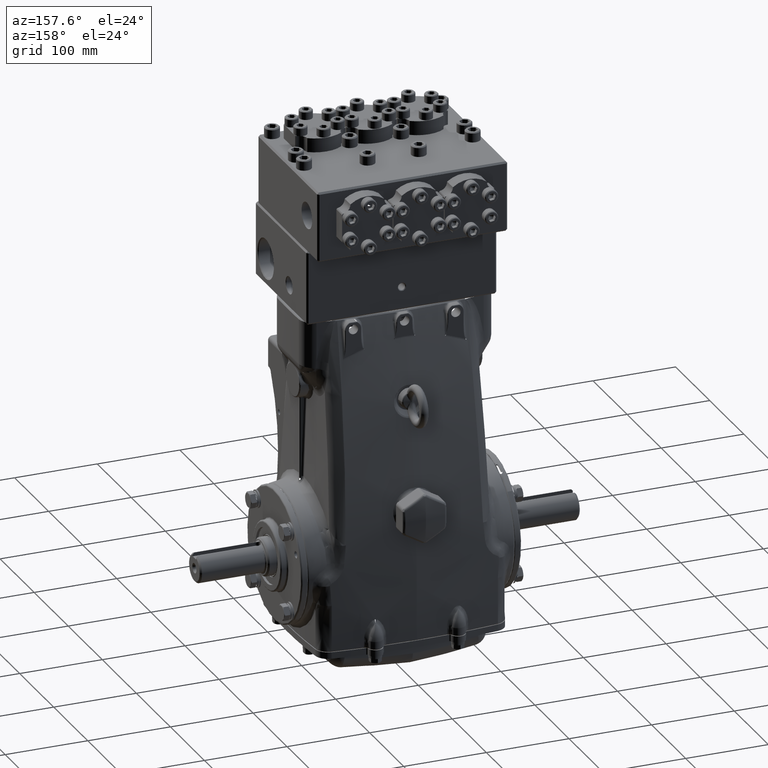
[diagram: clean part render]
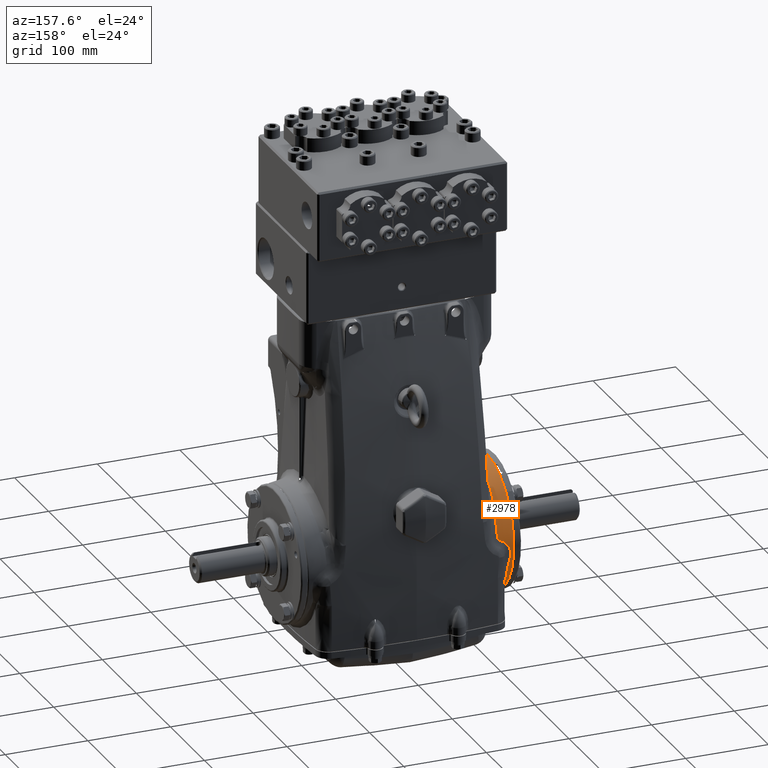
[diagram: same view with one face highlighted and labeled with its STEP entity id]
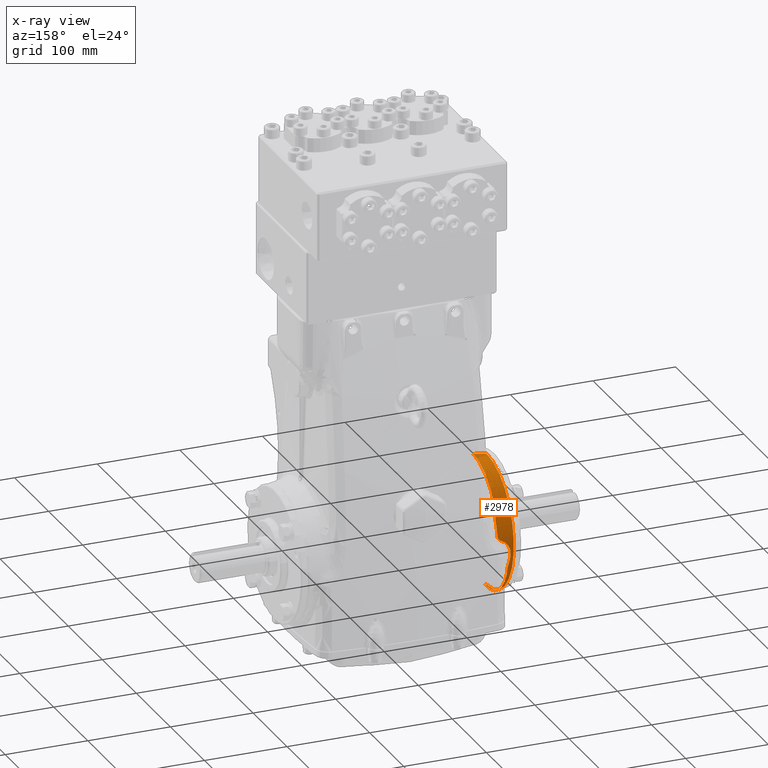
[diagram: x-ray of the same camera — body ghosted, the highlighted face saturated]
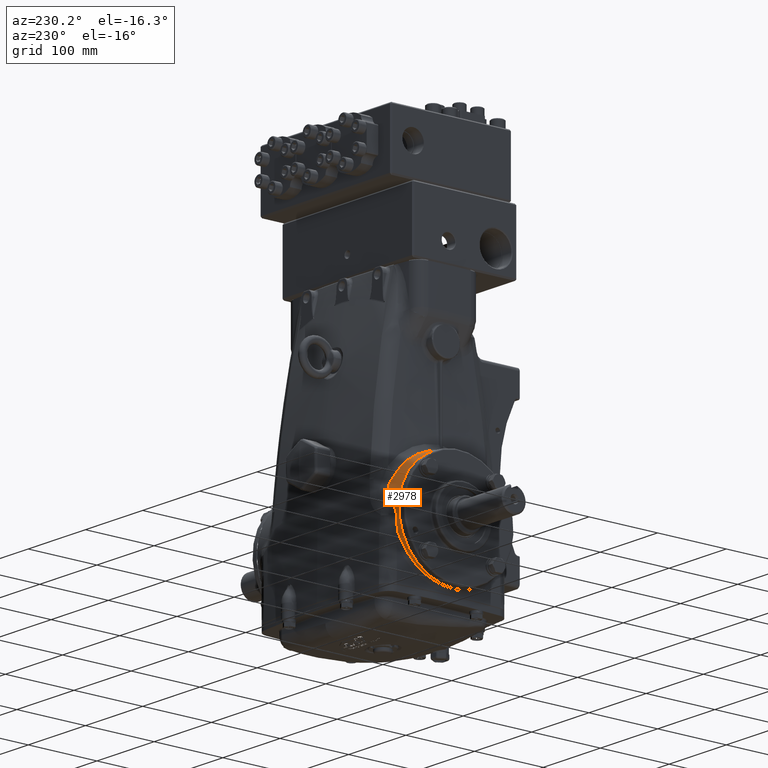
[diagram: same view with one face highlighted and labeled with its STEP entity id]
A machine part, auxiliary view. The second image highlights one B-rep face of the part: STEP entity #2978.
The next image is the same camera in x-ray: the body ghosted, the highlighted face saturated — about 3% of this face is hidden behind the body in this view.
A second angle (auxiliary view) of the same face is appended — the face is thin or edge-on in the first view.
In plain terms, the highlighted toroidal blend (fillet) surface has major radius 710.174 mm and minor (blend) radius 800 mm.
Its self-contained STEP definition (entity closure, byte-faithful):
#178 = CARTESIAN_POINT ( 'NONE',  ( -4.797843095949712477, 0.9092048436318075355, -3.035723445469324933 ) ) ;
#476 = CARTESIAN_POINT ( 'NONE',  ( -4.211605221329781656, 1.459712636566402599, 2.907775198027923391 ) ) ;
#1080 = CARTESIAN_POINT ( 'NONE',  ( -4.189190983256752432, 1.958735077367343314, 2.602774756868502237 ) ) ;
#1690 = CARTESIAN_POINT ( 'NONE',  ( -4.168031201832947730, 2.358709150963936185, 2.250419717699980282 ) ) ;
#1810 = CARTESIAN_POINT ( 'NONE',  ( -4.126408329044968681, 2.796086372542307075, 1.685817952120126639 ) ) ;
#2382 = CARTESIAN_POINT ( 'NONE',  ( -4.637802544244244984, 2.974521444932946235, -1.161151241241906051 ) ) ;
#2556 = CARTESIAN_POINT ( 'NONE',  ( -4.709585980733560717, 3.132484931105113724, -0.5626041391635295819 ) ) ;
#2978 = ADVANCED_FACE ( 'NONE', ( #16856 ), #30606, .T. ) ;
#3164 = CARTESIAN_POINT ( 'NONE',  ( -4.687262923241093837, 3.102456116472033898, -0.7235955573158886489 ) ) ;
#3765 = CARTESIAN_POINT ( 'NONE',  ( -4.662550496418692347, 3.072079581566538931, -0.8575332463922505921 ) ) ;
#3849 = CARTESIAN_POINT ( 'NONE',  ( -4.511779959659552475, 3.206226003355470588, 0.1866642065185905863 ) ) ;
#4372 = CARTESIAN_POINT ( 'NONE',  ( -4.643925203085364828, 3.042650323329321171, -0.9659152903292752557 ) ) ;
#4460 = CARTESIAN_POINT ( 'NONE',  ( -4.707478768105782585, 3.176785799462264137, -0.2060037105546783098 ) ) ;
#4953 = CARTESIAN_POINT ( 'NONE',  ( -4.671994797260747845, 2.817599287592787771, -1.491502570683553408 ) ) ;
#4983 = CARTESIAN_POINT ( 'NONE',  ( -4.633202648746894248, 2.987906131833676149, -1.128746862726888178 ) ) ;
#5137 = VERTEX_POINT ( 'NONE', #104808 ) ;
#6031 = VERTEX_POINT ( 'NONE', #74820 ) ;
#6977 = CARTESIAN_POINT ( 'NONE',  ( -4.060682117725922247, 3.037860683432504594, 1.219760950701152868 ) ) ;
#7551 = CARTESIAN_POINT ( 'NONE',  ( -2.731847993664263218E-15, 0.0000000000000000000, 0.0000000000000000000 ) ) ;
#7580 = CARTESIAN_POINT ( 'NONE',  ( -4.068284557955822223, 3.102059307751843686, 1.042674253447394062 ) ) ;
#7633 = CARTESIAN_POINT ( 'NONE',  ( -4.683430408163863135, 2.701634298173186455, -1.690395597115273985 ) ) ;
#7797 = CARTESIAN_POINT ( 'NONE',  ( -4.108279912502661446, 3.227877772341144258, 0.5064635244392037272 ) ) ;
#8244 = CARTESIAN_POINT ( 'NONE',  ( -4.717589957522975830, 2.316087719481910057, -2.180689669581934442 ) ) ;
#8859 = CARTESIAN_POINT ( 'NONE',  ( -4.763233705948388241, 1.668563542145169887, -2.700266167151289753 ) ) ;
#9013 = CARTESIAN_POINT ( 'NONE',  ( -4.671994797260747845, 2.817599287592787771, -1.491502570683553408 ) ) ;
#9464 = CARTESIAN_POINT ( 'NONE',  ( -4.794312616797400395, 1.013066599493596787, -3.003349883579779167 ) ) ;
#9771 = CARTESIAN_POINT ( 'NONE',  ( -4.220826247673924669, 1.208398392037944191, 3.022436128811769152 ) ) ;
#10088 = CARTESIAN_POINT ( 'NONE',  ( -4.812441865951741171, 0.1405687677117224144, -3.166625632652416922 ) ) ;
#10380 = CARTESIAN_POINT ( 'NONE',  ( -4.202618106653496000, 1.673424365633090716, 2.792380330007606659 ) ) ;
#10991 = CARTESIAN_POINT ( 'NONE',  ( -4.176290951663232498, 2.206861225430909457, 2.397505253174283535 ) ) ;
#11112 = CARTESIAN_POINT ( 'NONE',  ( -4.127112141118856492, 2.793115142972120601, 1.690558321221252935 ) ) ;
#11866 = CARTESIAN_POINT ( 'NONE',  ( -4.718949966771314841, 3.163181307671568465, -0.3420644485147501523 ) ) ;
#12473 = CARTESIAN_POINT ( 'NONE',  ( -4.687354046186608336, 3.102565975567542989, -0.7230639823669762212 ) ) ;
#12553 = CARTESIAN_POINT ( 'NONE',  ( -4.241298004304445257, 3.226000655407923912, 0.3907540742130110600 ) ) ;
#13067 = CARTESIAN_POINT ( 'NONE',  ( -4.667220439164643686, 3.078077342255525206, -0.8327364127504113256 ) ) ;
#13150 = CARTESIAN_POINT ( 'NONE',  ( -4.417987023484300835, 3.213153585340496221, 0.2768641273386435731 ) ) ;
#13679 = CARTESIAN_POINT ( 'NONE',  ( -4.647373880086534292, 3.048817741666649539, -0.9442737949156236876 ) ) ;
#13767 = CARTESIAN_POINT ( 'NONE',  ( -4.654287345790805830, 3.190485518470921100, -0.03772327638319619009 ) ) ;
#14257 = CARTESIAN_POINT ( 'NONE',  ( -4.637802544244244984, 2.974521444932946235, -1.161151241241906051 ) ) ;
#14285 = CARTESIAN_POINT ( 'NONE',  ( -4.634450989300444412, 3.014869449613513552, -1.053469424443866043 ) ) ;
#16278 = CARTESIAN_POINT ( 'NONE',  ( -4.060613805208734384, 3.035199367547008364, 1.226395766757159667 ) ) ;
#16815 = EDGE_CURVE ( 'NONE', #59379, #60044, #50010, .T. ) ;
#16856 = FACE_OUTER_BOUND ( 'NONE', #101670, .T. ) ;
#16882 = CARTESIAN_POINT ( 'NONE',  ( -4.067102877344662915, 3.094560274856232418, 1.065209821238402910 ) ) ;
#16933 = CARTESIAN_POINT ( 'NONE',  ( -4.671994797260747845, 2.817599287592787771, -1.491502570683553408 ) ) ;
#17102 = CARTESIAN_POINT ( 'NONE',  ( -4.093165184920723121, 3.225625657109164823, 0.5329661748473996097 ) ) ;
#17538 = CARTESIAN_POINT ( 'NONE',  ( -4.716619429066391866, 2.327906455178991862, -2.168297233718784689 ) ) ;
#17644 = B_SPLINE_CURVE_WITH_KNOTS ( 'NONE', 3,
 ( #14257, #52049, #89875, #4953 ),
 .UNSPECIFIED., .F., .F.,
 ( 4, 4 ),
 ( 0.0000000000000000000, 1.000000000000000000 ),
 .UNSPECIFIED. ) ;
#17669 = VERTEX_POINT ( 'NONE', #116915 ) ;
#18144 = CARTESIAN_POINT ( 'NONE',  ( -4.759732723984808622, 1.726496530009379082, -2.664350123377031032 ) ) ;
#18760 = CARTESIAN_POINT ( 'NONE',  ( -4.779332873788414204, 1.374437189907673273, -2.862059335705383845 ) ) ;
#19055 = CARTESIAN_POINT ( 'NONE',  ( -4.236104258452003890, 0.5879713359873277589, 3.199139847572507911 ) ) ;
#19374 = CARTESIAN_POINT ( 'NONE',  ( -4.803852467295594231, 0.7116834956764080955, -3.090504072778696987 ) ) ;
#19677 = CARTESIAN_POINT ( 'NONE',  ( -4.208540778272051419, 1.535507018643274435, 2.869031103639957170 ) ) ;
#19686 = CARTESIAN_POINT ( 'NONE',  ( 1.050220729719372817E-16, 0.0000000000000000000, 27.95960753795100473 ) ) ;
#19997 = ORIENTED_EDGE ( 'NONE', *, *, #23401, .T. ) ;
#20288 = CARTESIAN_POINT ( 'NONE',  ( -4.181113014844834552, 2.115889190610132253, 2.477053726652969079 ) ) ;
#20409 = CARTESIAN_POINT ( 'NONE',  ( -4.132586612445548369, 2.768810050746975282, 1.728819305921614591 ) ) ;
#21718 = DIRECTION ( 'NONE',  ( 1.000000000000000000, -0.0000000000000000000, -1.014631576207051350E-16 ) ) ;
#21764 = CARTESIAN_POINT ( 'NONE',  ( -4.688032192481906613, 3.103385253011131439, -0.7190895948247202352 ) ) ;
#21912 = VERTEX_POINT ( 'NONE', #76338 ) ;
#22372 = CARTESIAN_POINT ( 'NONE',  ( -4.669114370948201476, 3.080493680371853671, -0.8226656118114643590 ) ) ;
#22456 = CARTESIAN_POINT ( 'NONE',  ( -4.397186821826109870, 3.214622024187163696, 0.2936614195985500220 ) ) ;
#22967 = CARTESIAN_POINT ( 'NONE',  ( -4.647790478721005591, 3.049556969106494542, -0.9416738267458258926 ) ) ;
#23054 = CARTESIAN_POINT ( 'NONE',  ( -4.606960692279701064, 3.197344500046657156, 0.05734295969434103496 ) ) ;
#23186 = B_SPLINE_CURVE_WITH_KNOTS ( 'NONE', 3,
 ( #16933, #54723, #92530, #7633, #45429, #83250, #120913, #36109, #73952, #111661, #26821, #64656, #102408, #17538, #55338, #93136, #8244, #46039, #83864, #121538, #36733, #74566, #112272, #27439, #65273, #103016, #18144, #55939, #93744, #8859, #46648, #84480, #122149, #37341, #75186, #112885, #28057, #65885, #103627, #18760, #56559, #94358, #9464, #47269, #85100, #178, #37956, #75808, #113495, #28676, #66497, #104241, #19374, #57185, #94974, #10088, #47883 ),
 .UNSPECIFIED., .F., .F.,
 ( 4, 2, 2, 2, 2, 2, 1, 1, 1, 1, 2, 2, 2, 2, 2, 2, 2, 1, 1, 1, 1, 1, 2, 2, 2, 2, 2, 1, 1, 1, 1, 2, 2, 2, 4 ),
 ( 0.0000000000000000000, 0.03125311318571629554, 0.06250622637143259108, 0.09375933955714889356, 0.1093858961500070032, 0.1171991744464360719, 0.1211058135946505854, 0.1230591331687579115, 0.1240357929558115885, 0.1245241228493384478, 0.1247682877961018427, 0.1250124527428652099, 0.1562655659285787368, 0.1875186791142922638, 0.2187717923000057907, 0.2343983488928624570, 0.2422116271892908734, 0.2461182663375050816, 0.2480715859116121580, 0.2490482456986656545, 0.2495365755921922779, 0.2497807405389556035, 0.2499028230123371275, 0.2500249054857186515, 0.3125311318570550556, 0.3437842450427233132, 0.3594108016355573865, 0.3672240799319744786, 0.3711307190801830802, 0.3730840386542873532, 0.3740606984413394898, 0.3745490283348654748, 0.3750373582283915153, 0.4375435845997214801, 0.5000498109710513894 ),
 .UNSPECIFIED. ) ;
#23401 = EDGE_CURVE ( 'NONE', #65008, #29356, #95873, .T. ) ;
#23582 = CARTESIAN_POINT ( 'NONE',  ( -4.634630652145853347, 3.015844245340256968, -1.050595136712090261 ) ) ;
#24238 = AXIS2_PLACEMENT_3D ( 'NONE', #106560, #21718, #59512 ) ;
#24873 = AXIS2_PLACEMENT_3D ( 'NONE', #33738, #71564, #109279 ) ;
#25547 = CARTESIAN_POINT ( 'NONE',  ( -4.060790985719259005, 3.020988201423264741, 1.260962887461640092 ) ) ;
#26153 = CARTESIAN_POINT ( 'NONE',  ( -4.064397822582684228, 3.075925910933099416, 1.119075613789618506 ) ) ;
#26371 = CARTESIAN_POINT ( 'NONE',  ( -4.068304483177183073, 3.216034579250465431, 0.6064597124523278815 ) ) ;
#26766 = CARTESIAN_POINT ( 'NONE',  ( -4.074363985436248115, 3.180820828266668787, 0.7689710390521488081 ) ) ;
#26821 = CARTESIAN_POINT ( 'NONE',  ( -4.712659892498009206, 2.375626968222384949, -2.116911112170181131 ) ) ;
#27439 = CARTESIAN_POINT ( 'NONE',  ( -4.750254788205690026, 1.874554800852576975, -2.565005768069354541 ) ) ;
#28057 = CARTESIAN_POINT ( 'NONE',  ( -4.764642457934063380, 1.644579829930432613, -2.714681449450699890 ) ) ;
#28354 = CARTESIAN_POINT ( 'NONE',  ( -4.240228305173727286, 0.2297979854777702502, 3.242110647552720160 ) ) ;
#28676 = CARTESIAN_POINT ( 'NONE',  ( -4.799437959627123718, 0.8579527036116665339, -3.050271356682671353 ) ) ;
#28962 = CARTESIAN_POINT ( 'NONE',  ( -4.211025483433735062, 1.474377967702478642, 2.900462298901600899 ) ) ;
#29356 = VERTEX_POINT ( 'NONE', #72425 ) ;
#29564 = CARTESIAN_POINT ( 'NONE',  ( -4.182322626664320531, 2.092803026198815530, 2.496343212924442501 ) ) ;
#29681 = CARTESIAN_POINT ( 'NONE',  ( -4.142279940224504742, 2.717042258368078667, 1.806882848541122577 ) ) ;
#30297 = CARTESIAN_POINT ( 'NONE',  ( -4.073807283106575028, 2.959955667553678893, 1.394234154907067369 ) ) ;
#30606 = TOROIDAL_SURFACE ( 'NONE', #46440, -27.95960753795100473, 31.49606299212598515 ) ;
#31044 = CARTESIAN_POINT ( 'NONE',  ( -4.693224141703741914, 3.109767864790992764, -0.6874893449112643440 ) ) ;
#31661 = CARTESIAN_POINT ( 'NONE',  ( -4.676137898167103124, 3.089221795566293505, -0.7850670337349557881 ) ) ;
#31746 = CARTESIAN_POINT ( 'NONE',  ( -4.350307036733443766, 3.217929832169827087, 0.3278665764670546379 ) ) ;
#32269 = CARTESIAN_POINT ( 'NONE',  ( -4.650305141355814520, 3.053837608234353684, -0.9264143642954951741 ) ) ;
#32349 = CARTESIAN_POINT ( 'NONE',  ( -4.556716753946008502, 3.202404114247054512, 0.1313652778082986528 ) ) ;
#32869 = CARTESIAN_POINT ( 'NONE',  ( -4.635873131140050951, 3.021321905678378883, -1.034174722359415322 ) ) ;
#33692 = EDGE_CURVE ( 'NONE', #6031, #5137, #94188, .T. ) ;
#33738 = CARTESIAN_POINT ( 'NONE',  ( -5.568718060300463558E-15, -3.424064387676790698E-15, -27.95960753795100473 ) ) ;
#34843 = CARTESIAN_POINT ( 'NONE',  ( -4.065483745677839877, 2.984415806383051262, 1.344103163167974291 ) ) ;
#35307 = EDGE_CURVE ( 'NONE', #85900, #100896, #108739, .T. ) ;
#35445 = CARTESIAN_POINT ( 'NONE',  ( -4.060888845328348928, 3.044272128059818172, 1.203706702774061776 ) ) ;
#36056 = CARTESIAN_POINT ( 'NONE',  ( -4.068532156453218640, 3.103588364022296986, 1.038010575859050766 ) ) ;
#36109 = CARTESIAN_POINT ( 'NONE',  ( -4.705443912580073551, 2.460462718559939255, -2.019691177571926399 ) ) ;
#36282 = CARTESIAN_POINT ( 'NONE',  ( -4.143015188862572806, 3.231316291240728500, 0.4545007877094318083 ) ) ;
#36733 = CARTESIAN_POINT ( 'NONE',  ( -4.728569116195684430, 2.178324289510480849, -2.317597206545339183 ) ) ;
#37341 = CARTESIAN_POINT ( 'NONE',  ( -4.764539169395844986, 1.646354510089773182, -2.713624174705099090 ) ) ;
#37478 = ORIENTED_EDGE ( 'NONE', *, *, #39262, .T. ) ;
#37638 = CARTESIAN_POINT ( 'NONE',  ( -4.240953334966198973, 0.05668292496124047869, 3.249258510206218808 ) ) ;
#37956 = CARTESIAN_POINT ( 'NONE',  ( -4.798713747854339573, 0.8815580754054231916, -3.043668421738258356 ) ) ;
#38245 = CARTESIAN_POINT ( 'NONE',  ( -4.211561456518189139, 1.460825144298188771, 2.907223057753597573 ) ) ;
#38856 = CARTESIAN_POINT ( 'NONE',  ( -4.185988274675155552, 2.022647832414890434, 2.554336630853033974 ) ) ;
#38978 = CARTESIAN_POINT ( 'NONE',  ( -4.154194953984836403, 2.605897780206630987, 1.960951467905414525 ) ) ;
#39262 = EDGE_CURVE ( 'NONE', #100896, #46222, #17644, .T. ) ;
#39471 = CARTESIAN_POINT ( 'NONE',  ( -4.160948370523017914, 2.485929650389656409, 2.113262575487194539 ) ) ;
#39585 = CARTESIAN_POINT ( 'NONE',  ( -4.126339195425622108, 2.796376527518634525, 1.685354288209334639 ) ) ;
#40337 = CARTESIAN_POINT ( 'NONE',  ( -4.702604789657244488, 3.122155978892150685, -0.6218021552101953286 ) ) ;
#40944 = CARTESIAN_POINT ( 'NONE',  ( -4.685647947006665426, 3.100509618030842685, -0.7330108302683622234 ) ) ;
#41557 = CARTESIAN_POINT ( 'NONE',  ( -4.658744023977678950, 3.066781797780099961, -0.8782455666333535138 ) ) ;
#41639 = CARTESIAN_POINT ( 'NONE',  ( -4.523483147003783955, 3.205284496424921414, 0.1732206657350554291 ) ) ;
#42171 = CARTESIAN_POINT ( 'NONE',  ( -4.641161413697816762, 3.036739050912720117, -0.9856143735910870562 ) ) ;
#42247 = CARTESIAN_POINT ( 'NONE',  ( -4.713410149019337858, 3.169753052427448203, -0.2763368758280543847 ) ) ;
#42764 = CARTESIAN_POINT ( 'NONE',  ( -4.637802544244244984, 2.974521444932946235, -1.161151241241906051 ) ) ;
#44758 = CARTESIAN_POINT ( 'NONE',  ( -4.060687204822597707, 3.038023808686082017, 1.219352774106949422 ) ) ;
#45345 = DIRECTION ( 'NONE',  ( 1.000000000000000000, -0.0000000000000000000, -1.014631576207059362E-16 ) ) ;
#45380 = CARTESIAN_POINT ( 'NONE',  ( -4.068415643070390608, 3.102870316987392130, 1.040203202745187294 ) ) ;
#45429 = CARTESIAN_POINT ( 'NONE',  ( -4.686896633908743226, 2.665530621674756961, -1.746205885232524402 ) ) ;
#45593 = CARTESIAN_POINT ( 'NONE',  ( -4.109824750242523805, 3.228043533660647224, 0.5040861840430629348 ) ) ;
#46039 = CARTESIAN_POINT ( 'NONE',  ( -4.717671136564600687, 2.315097310291981625, -2.181723162825993878 ) ) ;
#46222 = VERTEX_POINT ( 'NONE', #9013 ) ;
#46440 = AXIS2_PLACEMENT_3D ( 'NONE', #7551, #45345, #83173 ) ;
#46648 = CARTESIAN_POINT ( 'NONE',  ( -4.763675530139307668, 1.661102790233410564, -2.704786806589696724 ) ) ;
#47269 = CARTESIAN_POINT ( 'NONE',  ( -4.795450030175883782, 0.9809122713442132158, -3.013811345509747497 ) ) ;
#47560 = CARTESIAN_POINT ( 'NONE',  ( -4.216548039107368417, 1.333862886328504249, 2.970133266067845668 ) ) ;
#47883 = CARTESIAN_POINT ( 'NONE',  ( -4.812441923013380141, -1.483643769782659426E-06, -3.166625558008624886 ) ) ;
#48172 = CARTESIAN_POINT ( 'NONE',  ( -4.197764519733664379, 1.780128488656253616, 2.726376967030726739 ) ) ;
#48776 = CARTESIAN_POINT ( 'NONE',  ( -4.174830265929363016, 2.234039248338217210, 2.372433046703318560 ) ) ;
#48893 = CARTESIAN_POINT ( 'NONE',  ( -4.126702464456719177, 2.794848501333184299, 1.687794566716130706 ) ) ;
#49654 = CARTESIAN_POINT ( 'NONE',  ( -4.719540509578000531, 3.154915213107856164, -0.4122929287186804514 ) ) ;
#50010 = CIRCLE ( 'NONE', #119137, 31.49606299212598515 ) ;
#50261 = CARTESIAN_POINT ( 'NONE',  ( -4.687312314538300662, 3.102515657681125028, -0.7233074892485588103 ) ) ;
#50867 = CARTESIAN_POINT ( 'NONE',  ( -4.667059506843767913, 3.077870945339407083, -0.8335911977568878362 ) ) ;
#50945 = CARTESIAN_POINT ( 'NONE',  ( -4.449289446077417054, 3.210934168277634448, 0.2506529986586616965 ) ) ;
#51465 = CARTESIAN_POINT ( 'NONE',  ( -4.647339634157449773, 3.048756602665818161, -0.9444884395169841351 ) ) ;
#51547 = CARTESIAN_POINT ( 'NONE',  ( -4.660993397047885622, 3.189250702800486170, -0.05404280267340488830 ) ) ;
#52049 = CARTESIAN_POINT ( 'NONE',  ( -4.655392872214228817, 2.923354228967182333, -1.285024907199356692 ) ) ;
#52078 = CARTESIAN_POINT ( 'NONE',  ( -4.634440606442751687, 3.014811411861998192, -1.053640205914663008 ) ) ;
#54071 = CARTESIAN_POINT ( 'NONE',  ( -4.060649463394509162, 3.036719413738879769, 1.222611771821872528 ) ) ;
#54673 = CARTESIAN_POINT ( 'NONE',  ( -4.067518039496773596, 3.097246644296904883, 1.057219212113420514 ) ) ;
#54723 = CARTESIAN_POINT ( 'NONE',  ( -4.674419873925382163, 2.793311763126516301, -1.536606663971731734 ) ) ;
#54889 = CARTESIAN_POINT ( 'NONE',  ( -4.098158099471019611, 3.226559838525895785, 0.5232349947814430857 ) ) ;
#55338 = CARTESIAN_POINT ( 'NONE',  ( -4.717184718578559810, 2.321027756816163024, -2.175523902555401623 ) ) ;
#55939 = CARTESIAN_POINT ( 'NONE',  ( -4.761700742719797042, 1.694181793152122362, -2.684567901175132221 ) ) ;
#56559 = CARTESIAN_POINT ( 'NONE',  ( -4.788055986661514218, 1.175783542990256114, -2.945171316113561755 ) ) ;
#56854 = CARTESIAN_POINT ( 'NONE',  ( -4.231215602252240693, 0.8338266816018564676, 3.144717854230572485 ) ) ;
#57185 = CARTESIAN_POINT ( 'NONE',  ( -4.807073488771952618, 0.5684139183233889447, -3.119363334558183265 ) ) ;
#57476 = CARTESIAN_POINT ( 'NONE',  ( -4.207650640939227138, 1.556802062359595507, 2.857693013763739742 ) ) ;
#57487 = DIRECTION ( 'NONE',  ( -0.0000000000000000000, -1.000000000000000000, 0.0000000000000000000 ) ) ;
#57957 = CARTESIAN_POINT ( 'NONE',  ( -4.874534027504089373, 0.0000000000000000000, -3.156962035488048102 ) ) ;
#58089 = CARTESIAN_POINT ( 'NONE',  ( -4.179724592494904911, 2.142270490814027539, 2.454623124114609922 ) ) ;
#58208 = CARTESIAN_POINT ( 'NONE',  ( -4.129518000186591209, 2.782706995776219383, 1.707054378561656538 ) ) ;
#59379 = VERTEX_POINT ( 'NONE', #57957 ) ;
#59512 = DIRECTION ( 'NONE',  ( -1.730681562182256507E-16, 0.0000000000000000000, -1.000000000000000000 ) ) ;
#59565 = CARTESIAN_POINT ( 'NONE',  ( -4.687645473598392343, 3.102917684149256949, -0.7213600123980212775 ) ) ;
#60044 = VERTEX_POINT ( 'NONE', #84348 ) ;
#60177 = CARTESIAN_POINT ( 'NONE',  ( -4.668018346718151079, 3.079098323096850720, -0.8284963074493799651 ) ) ;
#60260 = CARTESIAN_POINT ( 'NONE',  ( -4.407652848613972552, 3.213883866361708197, 0.2852961244722243550 ) ) ;
#60787 = CARTESIAN_POINT ( 'NONE',  ( -4.647546133545997549, 3.049124446143233413, -0.9431961791801340977 ) ) ;
#60870 = CARTESIAN_POINT ( 'NONE',  ( -4.631961125586597561, 3.194016852631057723, 0.01042872530092255057 ) ) ;
#61397 = CARTESIAN_POINT ( 'NONE',  ( -4.634524355979860566, 3.015274912597994295, -1.052275391091169743 ) ) ;
#63397 = CARTESIAN_POINT ( 'NONE',  ( -4.060588998366524649, 3.026121350726084014, 1.248690024777530994 ) ) ;
#63992 = CARTESIAN_POINT ( 'NONE',  ( -4.065797341743982329, 3.085842093108770889, 1.090750359027990557 ) ) ;
#64209 = CARTESIAN_POINT ( 'NONE',  ( -4.079234441981559378, 3.221883865133627456, 0.5659006136565180034 ) ) ;
#64609 = CARTESIAN_POINT ( 'NONE',  ( -4.072290178920226822, 3.193926241206049621, 0.7127005550974006010 ) ) ;
#64656 = CARTESIAN_POINT ( 'NONE',  ( -4.714545186524246034, 2.352995141165256321, -2.141527795417557112 ) ) ;
#65008 = VERTEX_POINT ( 'NONE', #100044 ) ;
#65273 = CARTESIAN_POINT ( 'NONE',  ( -4.753735279874944375, 1.821527652537699105, -2.601940138432784710 ) ) ;
#65885 = CARTESIAN_POINT ( 'NONE',  ( -4.764648427671553499, 1.644477202537559801, -2.714742563164085798 ) ) ;
#66177 = CARTESIAN_POINT ( 'NONE',  ( -4.239770164835555022, 0.2885403666436016090, 3.237503364516749915 ) ) ;
#66497 = CARTESIAN_POINT ( 'NONE',  ( -4.799497430015688515, 0.8559893023175728644, -3.050813399196085296 ) ) ;
#66787 = CARTESIAN_POINT ( 'NONE',  ( -4.210373887476568378, 1.490681231529583206, 2.892241823473294282 ) ) ;
#67391 = CARTESIAN_POINT ( 'NONE',  ( -4.182170419690125485, 2.095713311677581459, 2.493929034235552678 ) ) ;
#67511 = CARTESIAN_POINT ( 'NONE',  ( -4.139591045012609882, 2.732989114669878816, 1.783338659707518037 ) ) ;
#68281 = CARTESIAN_POINT ( 'NONE',  ( -4.713410149019337858, 3.169753052427448203, -0.2763368758280543847 ) ) ;
#68891 = CARTESIAN_POINT ( 'NONE',  ( -4.690308082278538571, 3.106157817435942103, -0.7055041571669017353 ) ) ;
#69502 = CARTESIAN_POINT ( 'NONE',  ( -4.672923879902360689, 3.085266884929058318, -0.8023217581850503599 ) ) ;
#69582 = CARTESIAN_POINT ( 'NONE',  ( -4.364994736599185465, 3.216890663559647923, 0.3176943694298491883 ) ) ;
#70103 = CARTESIAN_POINT ( 'NONE',  ( -4.649334226890559307, 3.052227528950085311, -0.9322061596610313750 ) ) ;
#70188 = CARTESIAN_POINT ( 'NONE',  ( -4.561969227766507373, 3.201919147311642178, 0.1242613619186474228 ) ) ;
#70704 = CARTESIAN_POINT ( 'NONE',  ( -4.635356945479838231, 3.019301196228806994, -1.040300789310913743 ) ) ;
#71564 = DIRECTION ( 'NONE',  ( -1.242565312115808949E-32, 1.000000000000000000, -1.224646799147353207E-16 ) ) ;
#71626 = EDGE_CURVE ( 'NONE', #29356, #6031, #75578, .T. ) ;
#72107 = B_SPLINE_CURVE_WITH_KNOTS ( 'NONE', 3,
 ( #84774, #122443, #37638, #75486, #113170, #28354, #66177, #103924, #19055, #56854, #94658, #9771, #47560, #85391, #476, #38245, #76093, #113782, #28962, #66787, #104525, #19677, #57476, #95265, #10380, #48172, #86000, #1080, #38856, #76695, #114390, #29564, #67391, #105133, #20288, #58089, #95880, #10991, #48776, #86615, #1690, #39471, #77307, #114989 ),
 .UNSPECIFIED., .F., .F.,
 ( 4, 2, 2, 2, 2, 2, 2, 2, 1, 1, 1, 1, 2, 2, 2, 2, 2, 2, 1, 1, 1, 1, 2, 2, 2, 4 ),
 ( 0.4998095448471048807, 0.5154404965706326225, 0.5310714482941604198, 0.5623333517412159033, 0.6248571586353269813, 0.6873809655294379484, 0.7499047724235490264, 0.7503932396649092285, 0.7508817069062694305, 0.7518586413889898346, 0.7538125103544307537, 0.7577202482853128140, 0.7655357241470769347, 0.7811666758706050651, 0.8124285793176613257, 0.8436904827647176974, 0.8749523862117739581, 0.8754408534531341601, 0.8759293206944944732, 0.8769062551772148772, 0.8788601241426559074, 0.8827678620735379678, 0.8905833379353020884, 0.9062142896588303298, 0.9374761931058868125, 1.000000000000000000 ),
 .UNSPECIFIED. ) ;
#72425 = CARTESIAN_POINT ( 'NONE',  ( -4.073807283106575028, 2.959955667553678893, 1.394234154907067369 ) ) ;
#72674 = CARTESIAN_POINT ( 'NONE',  ( -4.062205402962512757, 3.004103549892345182, 1.300282933183972034 ) ) ;
#73283 = CARTESIAN_POINT ( 'NONE',  ( -4.061640678879331112, 3.053099380401181229, 1.181191259637637270 ) ) ;
#73496 = CARTESIAN_POINT ( 'NONE',  ( -4.068200303526625206, 3.204746600826735126, 0.6630299790286307005 ) ) ;
#73902 = CARTESIAN_POINT ( 'NONE',  ( -4.072521757522702401, 3.128117435498546595, 0.9630082769759731320 ) ) ;
#73952 = CARTESIAN_POINT ( 'NONE',  ( -4.707784198545636123, 2.433308943304985927, -2.051827892108244900 ) ) ;
#74119 = CARTESIAN_POINT ( 'NONE',  ( -4.186148826015539726, 3.230282863534385207, 0.4177282841758522824 ) ) ;
#74566 = CARTESIAN_POINT ( 'NONE',  ( -4.738100092814431008, 2.049982218613623619, -2.429962069731101515 ) ) ;
#74820 = CARTESIAN_POINT ( 'NONE',  ( -4.068200303526625206, 3.204746600826735126, 0.6630299790286307005 ) ) ;
#75186 = CARTESIAN_POINT ( 'NONE',  ( -4.764599485835518067, 1.645318456092273340, -2.714241568333171983 ) ) ;
#75248 = EDGE_CURVE ( 'NONE', #21912, #17669, #78355, .T. ) ;
#75486 = CARTESIAN_POINT ( 'NONE',  ( -4.240800790362834860, 0.1139501121042472698, 3.247775225091308116 ) ) ;
#75578 = B_SPLINE_CURVE_WITH_KNOTS ( 'NONE', 3,
 ( #81987, #119636, #34843, #72674, #110374, #25547, #63397, #101151, #16278, #54071, #91873, #6977, #44758, #82596, #120250, #35445, #73283, #110980, #26153, #63992, #101751, #16882, #54673, #92478, #7580, #45380, #83202, #120864, #36056, #73902, #111606, #26766, #64609, #102360 ),
 .UNSPECIFIED., .F., .F.,
 ( 4, 2, 2, 1, 1, 1, 1, 1, 1, 2, 2, 2, 2, 2, 1, 1, 1, 1, 2, 2, 2, 4 ),
 ( 0.0000000000000000000, 0.1249999999999765188, 0.1874999999999648337, 0.2187499999999585887, 0.2343749999999550915, 0.2421874999999529821, 0.2460937499999513722, 0.2480468749999507894, 0.2490234374999505118, 0.2495117187499497902, 0.2499999999999490963, 0.3749999999999541478, 0.4374999999999566458, 0.4687499999999580336, 0.4843749999999586442, 0.4921874999999587552, 0.4960937499999590883, 0.4980468749999593103, 0.4990234374999591438, 0.4999999999999590328, 0.7499999999999795719, 1.000000000000000000 ),
 .UNSPECIFIED. ) ;
#75808 = CARTESIAN_POINT ( 'NONE',  ( -4.799138692012363094, 0.8677778144568014662, -3.047543337469392100 ) ) ;
#76093 = CARTESIAN_POINT ( 'NONE',  ( -4.211495619909074506, 1.462497469025329622, 2.906392489463466511 ) ) ;
#76338 = CARTESIAN_POINT ( 'NONE',  ( -4.874534027504088485, 3.866163451790151959E-16, 3.156962035488049434 ) ) ;
#76695 = CARTESIAN_POINT ( 'NONE',  ( -4.182472802713530058, 2.089930500686815407, 2.498722388161982444 ) ) ;
#76814 = CARTESIAN_POINT ( 'NONE',  ( -4.152452471206441231, 2.637416720390434843, 1.919451715463281527 ) ) ;
#77307 = CARTESIAN_POINT ( 'NONE',  ( -4.157123225151093671, 2.552917901241401832, 2.030708140883787483 ) ) ;
#77427 = CARTESIAN_POINT ( 'NONE',  ( -4.113773588151441452, 2.849044325931712418, 1.601160860000196973 ) ) ;
#77719 = CIRCLE ( 'NONE', #24238, 3.156962035488045437 ) ;
#78184 = CARTESIAN_POINT ( 'NONE',  ( -4.699968347651049427, 3.118516502551762937, -0.6418015342040015447 ) ) ;
#78355 = CIRCLE ( 'NONE', #24873, 31.49606299212598515 ) ;
#78799 = CARTESIAN_POINT ( 'NONE',  ( -4.683147111307042643, 3.097608457130101467, -0.7469609030421748841 ) ) ;
#78882 = CARTESIAN_POINT ( 'NONE',  ( -4.273934695335836587, 3.223466389223916817, 0.3747918640754936415 ) ) ;
#79247 = CARTESIAN_POINT ( 'NONE',  ( -4.713410149019337858, 3.169753052427448203, -0.2763368758280543847 ) ) ;
#79402 = CARTESIAN_POINT ( 'NONE',  ( -4.653845877341892923, 3.059477005457208243, -0.9057961562457295113 ) ) ;
#79482 = CARTESIAN_POINT ( 'NONE',  ( -4.540375809063373680, 3.203853690509907537, 0.1525172019426031533 ) ) ;
#79875 = ORIENTED_EDGE ( 'NONE', *, *, #83902, .T. ) ;
#80006 = CARTESIAN_POINT ( 'NONE',  ( -4.637940582085658292, 3.028202304522158439, -1.012916883210215557 ) ) ;
#81987 = CARTESIAN_POINT ( 'NONE',  ( -4.073807283106575028, 2.959955667553678893, 1.394234154907067369 ) ) ;
#82596 = CARTESIAN_POINT ( 'NONE',  ( -4.060690636429155731, 3.038132567043548171, 1.219080569080521093 ) ) ;
#82635 = ORIENTED_EDGE ( 'NONE', *, *, #33692, .T. ) ;
#82779 = ORIENTED_EDGE ( 'NONE', *, *, #114039, .T. ) ;
#83173 = DIRECTION ( 'NONE',  ( -1.014631576207059362E-16, 0.0000000000000000000, -1.000000000000000000 ) ) ;
#83202 = CARTESIAN_POINT ( 'NONE',  ( -4.068472128407783828, 3.103218691282044972, 1.039139869730006493 ) ) ;
#83250 = CARTESIAN_POINT ( 'NONE',  ( -4.694523051911406952, 2.583565774452746489, -1.863373084147643466 ) ) ;
#83415 = CARTESIAN_POINT ( 'NONE',  ( -4.110864057340496203, 3.228151902489282410, 0.5025030673295376449 ) ) ;
#83864 = CARTESIAN_POINT ( 'NONE',  ( -4.717708958625588700, 2.314635766609001166, -2.182204485320044185 ) ) ;
#83902 = EDGE_CURVE ( 'NONE', #5137, #85900, #102630, .T. ) ;
#84348 = CARTESIAN_POINT ( 'NONE',  ( -4.812441923013380141, -1.483643769782659426E-06, -3.166625558008624886 ) ) ;
#84480 = CARTESIAN_POINT ( 'NONE',  ( -4.764173428944336486, 1.652619614622677924, -2.709881158359925823 ) ) ;
#84634 = ORIENTED_EDGE ( 'NONE', *, *, #35307, .T. ) ;
#84774 = CARTESIAN_POINT ( 'NONE',  ( -4.240991282790827377, 4.564405169455413455E-14, 3.249621495888693534 ) ) ;
#85100 = CARTESIAN_POINT ( 'NONE',  ( -4.797061227775317072, 0.9330464192758308739, -3.028574282934838990 ) ) ;
#85391 = CARTESIAN_POINT ( 'NONE',  ( -4.211620210994576397, 1.459331553812883042, 2.907964344890767716 ) ) ;
#85900 = VERTEX_POINT ( 'NONE', #79247 ) ;
#86000 = CARTESIAN_POINT ( 'NONE',  ( -4.195079105784188300, 1.837476766382925231, 2.688793220062252409 ) ) ;
#86378 = ORIENTED_EDGE ( 'NONE', *, *, #71626, .T. ) ;
#86615 = CARTESIAN_POINT ( 'NONE',  ( -4.170616330169766073, 2.311833096049011882, 2.298329167544205909 ) ) ;
#86735 = CARTESIAN_POINT ( 'NONE',  ( -4.126526089743371983, 2.795591241286135897, 1.686608774788145304 ) ) ;
#87491 = CARTESIAN_POINT ( 'NONE',  ( -4.713002603190037831, 3.138585436357359093, -0.5242061554179162641 ) ) ;
#88100 = CARTESIAN_POINT ( 'NONE',  ( -4.687284483995517448, 3.102482105390163447, -0.7234698350349969553 ) ) ;
#88699 = CARTESIAN_POINT ( 'NONE',  ( -4.666965849410340539, 3.077750727756393356, -0.8340885672653673977 ) ) ;
#88782 = CARTESIAN_POINT ( 'NONE',  ( -4.475345534754511689, 3.209050448013337054, 0.2259184952117016809 ) ) ;
#89303 = CARTESIAN_POINT ( 'NONE',  ( -4.647331895777702115, 3.048742789914717033, -0.9445369353654937683 ) ) ;
#89384 = CARTESIAN_POINT ( 'NONE',  ( -4.692081143195473203, 3.182739597121577724, -0.1375028528451174570 ) ) ;
#89875 = CARTESIAN_POINT ( 'NONE',  ( -4.666789276603434011, 2.869728011511237575, -1.394695065939464351 ) ) ;
#89905 = CARTESIAN_POINT ( 'NONE',  ( -4.632075836210256981, 3.001414894562708824, -1.093025603347540287 ) ) ;
#90289 = ORIENTED_EDGE ( 'NONE', *, *, #118235, .T. ) ;
#91873 = CARTESIAN_POINT ( 'NONE',  ( -4.060670670025836593, 3.037480144168240859, 1.220712446222050662 ) ) ;
#92478 = CARTESIAN_POINT ( 'NONE',  ( -4.068025243754767040, 3.100444825898950096, 1.047576137881565117 ) ) ;
#92530 = CARTESIAN_POINT ( 'NONE',  ( -4.677192028175667815, 2.765523840997222482, -1.585596981004990802 ) ) ;
#92693 = CARTESIAN_POINT ( 'NONE',  ( -4.104774153404586734, 3.227468512413511625, 0.5120292752812040105 ) ) ;
#93136 = CARTESIAN_POINT ( 'NONE',  ( -4.717468252469844359, 2.317572170465049375, -2.179139593028021515 ) ) ;
#93744 = CARTESIAN_POINT ( 'NONE',  ( -4.762329985590064929, 1.683734721167031712, -2.691015050928564634 ) ) ;
#94188 = B_SPLINE_CURVE_WITH_KNOTS ( 'NONE', 3,
 ( #73496, #111196, #26371, #64209, #101965, #17102, #54889, #92693, #7797, #45593, #83415, #121087, #36282, #74119, #111828 ),
 .UNSPECIFIED., .F., .F.,
 ( 4, 2, 2, 1, 1, 1, 2, 2, 4 ),
 ( 0.0000000000000000000, 0.2499999999999552025, 0.3749999999999322209, 0.4374999999999206746, 0.4687499999999150679, 0.4843749999999132916, 0.4921874999999137357, 0.4999999999999141798, 1.000000000000000000 ),
 .UNSPECIFIED. ) ;
#94358 = CARTESIAN_POINT ( 'NONE',  ( -4.790710522130899207, 1.110177121915983722, -2.970008615510711270 ) ) ;
#94658 = CARTESIAN_POINT ( 'NONE',  ( -4.228160029233702488, 0.9583803657471476889, 3.109726370704684051 ) ) ;
#94974 = CARTESIAN_POINT ( 'NONE',  ( -4.811368187988632528, 0.2828430311053728996, -3.157422797605316411 ) ) ;
#95265 = CARTESIAN_POINT ( 'NONE',  ( -4.204786279626849144, 1.624065871833306751, 2.820802426991491085 ) ) ;
#95278 = DIRECTION ( 'NONE',  ( 0.0000000000000000000, 0.0000000000000000000, -1.000000000000000000 ) ) ;
#95873 = B_SPLINE_CURVE_WITH_KNOTS ( 'NONE', 3,
 ( #38978, #76814, #114506, #29681, #67511, #105255, #20409, #58208, #96000, #11112, #48893, #86735, #1810, #39585, #77427, #115114, #30297 ),
 .UNSPECIFIED., .F., .F.,
 ( 4, 2, 2, 1, 1, 1, 1, 1, 2, 2, 4 ),
 ( 0.0000000000000000000, 0.2499999999998681055, 0.3749999999998021583, 0.4374999999997679079, 0.4687499999997514211, 0.4843749999997420952, 0.4921874999997379874, 0.4960937499997364331, 0.4980468749997367661, 0.4999999999997369882, 1.000000000000000000 ),
 .UNSPECIFIED. ) ;
#95880 = CARTESIAN_POINT ( 'NONE',  ( -4.178566036227635117, 2.164128353992353482, 2.435516790540199317 ) ) ;
#96000 = CARTESIAN_POINT ( 'NONE',  ( -4.127924037133526625, 2.789647256411917464, 1.696073466471861746 ) ) ;
#97352 = CARTESIAN_POINT ( 'NONE',  ( -4.687451320871677041, 3.102683310140891049, -0.7224958822362519406 ) ) ;
#97950 = CARTESIAN_POINT ( 'NONE',  ( -4.667461184026599597, 3.078385869944600728, -0.8314575074458856463 ) ) ;
#98038 = CARTESIAN_POINT ( 'NONE',  ( -4.414589490310032893, 3.213393911269442516, 0.2796647949844720538 ) ) ;
#98551 = CARTESIAN_POINT ( 'NONE',  ( -4.647425348058991545, 3.048909547949775423, -0.9439514029321357524 ) ) ;
#98631 = CARTESIAN_POINT ( 'NONE',  ( -4.639759689958159683, 3.192871006479761409, -0.005456586026285514812 ) ) ;
#99154 = CARTESIAN_POINT ( 'NONE',  ( -4.634480155325985784, 3.015031549602352978, -1.052992245038157249 ) ) ;
#100044 = CARTESIAN_POINT ( 'NONE',  ( -4.154194953984836403, 2.605897780206630987, 1.960951467905414525 ) ) ;
#100896 = VERTEX_POINT ( 'NONE', #2382 ) ;
#101151 = CARTESIAN_POINT ( 'NONE',  ( -4.060569509154871248, 3.032165111257359325, 1.233905175712355362 ) ) ;
#101670 = EDGE_LOOP ( 'NONE', ( #82779, #112307, #90289, #19997, #86378, #82635, #79875, #84634, #37478, #116534, #114384 ) ) ;
#101751 = CARTESIAN_POINT ( 'NONE',  ( -4.066298665785098798, 3.089266302009400889, 1.080826094015146177 ) ) ;
#101965 = CARTESIAN_POINT ( 'NONE',  ( -4.084083455364799775, 3.223547990076196079, 0.5525942428601540168 ) ) ;
#102360 = CARTESIAN_POINT ( 'NONE',  ( -4.068200303526625206, 3.204746600826735126, 0.6630299790286307005 ) ) ;
#102408 = CARTESIAN_POINT ( 'NONE',  ( -4.715495963174389793, 2.341534404476522724, -2.153863483351253549 ) ) ;
#102630 = B_SPLINE_CURVE_WITH_KNOTS ( 'NONE', 3,
 ( #12553, #78882, #116554, #31746, #69582, #107293, #22456, #60260, #98038, #13150, #50945, #88782, #3849, #41639, #79482, #117153, #32349, #70188, #107901, #23054, #60870, #98631, #13767, #51547, #89384, #4460, #42247 ),
 .UNSPECIFIED., .F., .F.,
 ( 4, 2, 2, 1, 2, 2, 2, 2, 2, 2, 2, 2, 2, 4 ),
 ( 0.0000000000000000000, 0.1250000000000062728, 0.1875000000000101863, 0.2187500000000121569, 0.2343750000000131284, 0.2500000000000140998, 0.3750000000000116573, 0.4375000000000097700, 0.4687500000000094924, 0.5000000000000091038, 0.6250000000000068834, 0.6875000000000058842, 0.7500000000000047740, 1.000000000000000000 ),
 .UNSPECIFIED. ) ;
#103016 = CARTESIAN_POINT ( 'NONE',  ( -4.758313658058396456, 1.749338634837009465, -2.649703809987817849 ) ) ;
#103627 = CARTESIAN_POINT ( 'NONE',  ( -4.772504795427527036, 1.509365373471758920, -2.795164167902850938 ) ) ;
#103924 = CARTESIAN_POINT ( 'NONE',  ( -4.237937341650102496, 0.4666688453369636225, 3.218573893900623428 ) ) ;
#104241 = CARTESIAN_POINT ( 'NONE',  ( -4.799524066274955203, 0.8551085311602437677, -3.051056169312085675 ) ) ;
#104525 = CARTESIAN_POINT ( 'NONE',  ( -4.209779012964548706, 1.505329183135394544, 2.884724071112845234 ) ) ;
#104808 = CARTESIAN_POINT ( 'NONE',  ( -4.241298004304445257, 3.226000655407923912, 0.3907540742130110600 ) ) ;
#105133 = CARTESIAN_POINT ( 'NONE',  ( -4.181816419220242942, 2.102475916431841618, 2.488299285340437983 ) ) ;
#105255 = CARTESIAN_POINT ( 'NONE',  ( -4.135012320419544807, 2.756875431698241119, 1.747139550401975550 ) ) ;
#106560 = CARTESIAN_POINT ( 'NONE',  ( -4.874534027504088485, 0.0000000000000000000, 4.945856143601376801E-16 ) ) ;
#106605 = CARTESIAN_POINT ( 'NONE',  ( -4.688799283999616208, 3.104315685295653715, -0.7145540513619228484 ) ) ;
#106910 = EDGE_CURVE ( 'NONE', #46222, #60044, #23186, .T. ) ;
#107212 = CARTESIAN_POINT ( 'NONE',  ( -4.671233215784202031, 3.083168010340913590, -0.8113714658762889442 ) ) ;
#107293 = CARTESIAN_POINT ( 'NONE',  ( -4.386537578189678932, 3.215371634423056069, 0.3017814981155949594 ) ) ;
#107818 = CARTESIAN_POINT ( 'NONE',  ( -4.648290265841529489, 3.050432860399716617, -0.9385814879365772523 ) ) ;
#107901 = CARTESIAN_POINT ( 'NONE',  ( -4.588154104738331185, 3.199416979873466627, 0.08763019607459265892 ) ) ;
#108415 = CARTESIAN_POINT ( 'NONE',  ( -4.634855889689063702, 3.016988810944897903, -1.047204236860931559 ) ) ;
#108739 = B_SPLINE_CURVE_WITH_KNOTS ( 'NONE', 3,
 ( #68281, #11866, #49654, #87491, #2556, #40337, #78184, #115867, #31044, #68891, #106605, #21764, #59565, #97352, #12473, #50261, #88100, #3164, #40944, #78799, #116471, #31661, #69502, #107212, #22372, #60177, #97950, #13067, #50867, #88699, #3765, #41557, #79402, #117072, #32269, #70103, #107818, #22967, #60787, #98551, #13679, #51465, #89303, #4372, #42171, #80006, #117666, #32869, #70704, #108415, #23582, #61397, #99154, #14285, #52078, #89905, #4983, #42764 ),
 .UNSPECIFIED., .F., .F.,
 ( 4, 2, 2, 2, 1, 1, 1, 1, 1, 1, 1, 2, 2, 2, 2, 1, 1, 1, 1, 2, 2, 2, 2, 1, 1, 1, 1, 1, 2, 2, 2, 2, 1, 1, 1, 1, 2, 2, 4 ),
 ( 0.0000000000000000000, 0.2499999999998876454, 0.3749999999998314126, 0.4374999999998031019, 0.4687499999997888911, 0.4843749999997816191, 0.4921874999997777889, 0.4960937499997757905, 0.4980468749997747357, 0.4990234374997741806, 0.4995117187497737365, 0.4997558593747732925, 0.4999999999997728484, 0.5624999999997337685, 0.5937499999997141176, 0.6093749999997041256, 0.6171874999996993516, 0.6210937499996969091, 0.6230468749996955768, 0.6240234374996951328, 0.6249999999996946887, 0.6874999999996814770, 0.7187499999996751487, 0.7343749999996719291, 0.7421874999996701527, 0.7460937499996690425, 0.7480468749996684874, 0.7490234374996681543, 0.7495117187496684874, 0.7499999999996688205, 0.8124999999997720712, 0.8437499999998234745, 0.8593749999998497868, 0.8671874999998627764, 0.8710937499998694378, 0.8730468749998722133, 0.8740234374998733236, 0.8749999999998744338, 1.000000000000000000 ),
 .UNSPECIFIED. ) ;
#109279 = DIRECTION ( 'NONE',  ( 0.0000000000000000000, 1.224646799147353207E-16, 1.000000000000000000 ) ) ;
#110374 = CARTESIAN_POINT ( 'NONE',  ( -4.061442002277554586, 3.010797124649145395, 1.284978783540849490 ) ) ;
#110980 = CARTESIAN_POINT ( 'NONE',  ( -4.063604080515749395, 3.069791716440971818, 1.136029323460480578 ) ) ;
#111196 = CARTESIAN_POINT ( 'NONE',  ( -4.065840728061390408, 3.210993378081472560, 0.6343532972537651027 ) ) ;
#111606 = CARTESIAN_POINT ( 'NONE',  ( -4.074479774735314308, 3.147917384622693326, 0.8941224154448853545 ) ) ;
#111661 = CARTESIAN_POINT ( 'NONE',  ( -4.711424708848597653, 2.390328644997696372, -2.100572970612545554 ) ) ;
#111828 = CARTESIAN_POINT ( 'NONE',  ( -4.241298004304445257, 3.226000655407923912, 0.3907540742130110600 ) ) ;
#112272 = CARTESIAN_POINT ( 'NONE',  ( -4.742437194682087132, 1.988780080770411018, -2.479019071591010981 ) ) ;
#112307 = ORIENTED_EDGE ( 'NONE', *, *, #75248, .T. ) ;
#112885 = CARTESIAN_POINT ( 'NONE',  ( -4.764625276935066545, 1.644875180666448111, -2.714505575616777744 ) ) ;
#113170 = CARTESIAN_POINT ( 'NONE',  ( -4.240686318708529967, 0.1427758200717517134, 3.246654892570338458 ) ) ;
#113495 = CARTESIAN_POINT ( 'NONE',  ( -4.799348568656832903, 0.8608985913561291170, -3.049456571740273514 ) ) ;
#113782 = CARTESIAN_POINT ( 'NONE',  ( -4.211340675411272549, 1.466424477580555941, 2.904437946695121120 ) ) ;
#114039 = EDGE_CURVE ( 'NONE', #59379, #21912, #77719, .T. ) ;
#114384 = ORIENTED_EDGE ( 'NONE', *, *, #16815, .F. ) ;
#114390 = CARTESIAN_POINT ( 'NONE',  ( -4.182424207421814089, 2.090860159687160102, 2.497952975795239006 ) ) ;
#114506 = CARTESIAN_POINT ( 'NONE',  ( -4.149255974136708325, 2.669237292166356301, 1.875798203415496967 ) ) ;
#114989 = CARTESIAN_POINT ( 'NONE',  ( -4.154194953984836403, 2.605897780206630987, 1.960951467905414525 ) ) ;
#115114 = CARTESIAN_POINT ( 'NONE',  ( -4.096280338324226555, 2.904665353719471987, 1.504736247358023249 ) ) ;
#115867 = CARTESIAN_POINT ( 'NONE',  ( -4.695549563933007597, 3.112737399651753556, -0.6721944440743814475 ) ) ;
#116471 = CARTESIAN_POINT ( 'NONE',  ( -4.678057497315309732, 3.091535085975620323, -0.7746902712634224919 ) ) ;
#116534 = ORIENTED_EDGE ( 'NONE', *, *, #106910, .T. ) ;
#116554 = CARTESIAN_POINT ( 'NONE',  ( -4.305265988498836904, 3.221160529966465180, 0.3570712227737043998 ) ) ;
#116915 = CARTESIAN_POINT ( 'NONE',  ( -4.240991282790827377, 4.564405169455413455E-14, 3.249621495888693534 ) ) ;
#117072 = CARTESIAN_POINT ( 'NONE',  ( -4.652348421731460348, 3.057148546968160741, -0.9143933618652367867 ) ) ;
#117153 = CARTESIAN_POINT ( 'NONE',  ( -4.545896343056667455, 3.203373650718045695, 0.1455263548847544886 ) ) ;
#117666 = CARTESIAN_POINT ( 'NONE',  ( -4.637021113110478154, 3.025411540886190132, -1.021643383217188950 ) ) ;
#118235 = EDGE_CURVE ( 'NONE', #17669, #65008, #72107, .T. ) ;
#119137 = AXIS2_PLACEMENT_3D ( 'NONE', #19686, #57487, #95278 ) ;
#119636 = CARTESIAN_POINT ( 'NONE',  ( -4.068986836574376653, 2.971817446734348334, 1.370527188221691839 ) ) ;
#120250 = CARTESIAN_POINT ( 'NONE',  ( -4.060693367735672688, 3.038217779892032677, 1.218867223457421600 ) ) ;
#120864 = CARTESIAN_POINT ( 'NONE',  ( -4.068509853299905110, 3.103451117388512870, 1.038430022731234859 ) ) ;
#120913 = CARTESIAN_POINT ( 'NONE',  ( -4.698683244177709994, 2.537701862296204425, -1.924731974841775717 ) ) ;
#121087 = CARTESIAN_POINT ( 'NONE',  ( -4.111431585664414357, 3.228209264101131293, 0.5016479586485136366 ) ) ;
#121538 = CARTESIAN_POINT ( 'NONE',  ( -4.723375241428365179, 2.245468073664622644, -2.254282922854854654 ) ) ;
#122149 = CARTESIAN_POINT ( 'NONE',  ( -4.764417987686476508, 1.648433592098015543, -2.712383873672699064 ) ) ;
#122443 = CARTESIAN_POINT ( 'NONE',  ( -4.240991409181451566, 0.02829054064660479692, 3.249621479620339759 ) ) ;